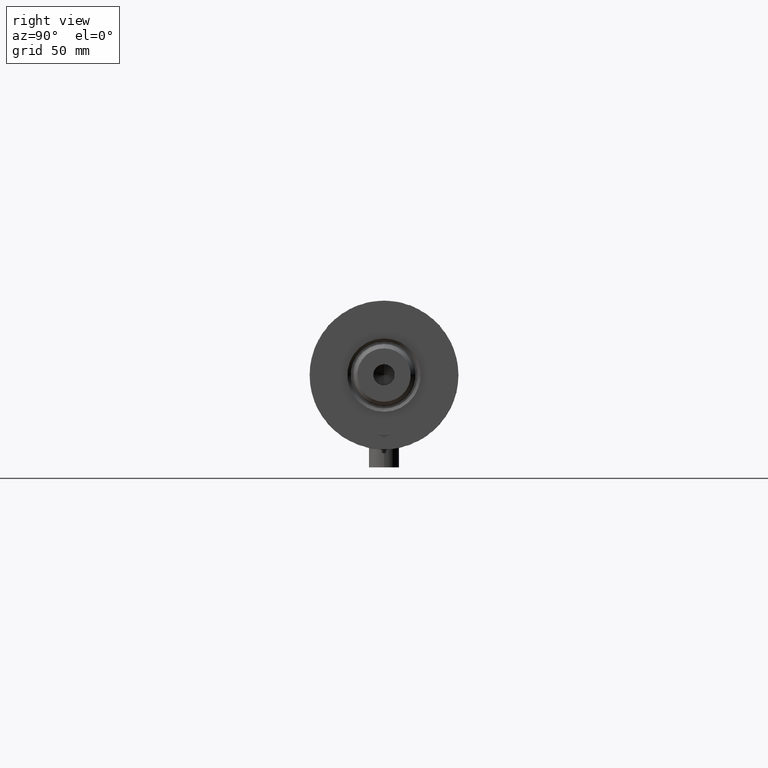
[diagram: clean part render]
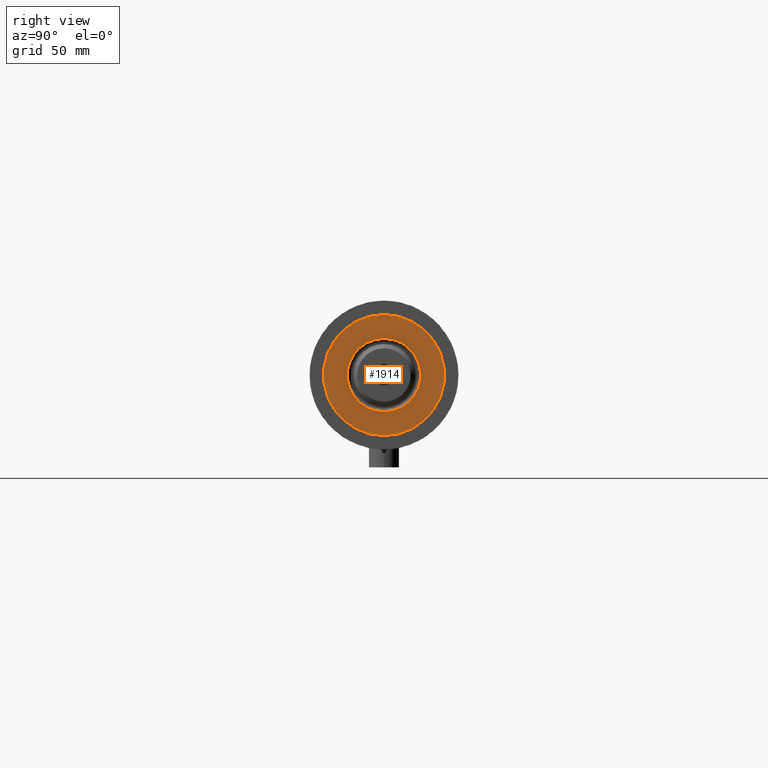
[diagram: same view with one face highlighted and labeled with its STEP entity id]
A machine part, right view. The second image highlights one B-rep face of the part: STEP entity #1914.
In plain terms, the highlighted planar face has unit normal (1, 0, -0).
Its self-contained STEP definition (entity closure, byte-faithful):
#97 = DIRECTION ( 'NONE',  ( 1.000000000000000000, 0.000000000000000000, 0.000000000000000000 ) ) ;
#384 = EDGE_CURVE ( 'NONE', #4756, #454, #4233, .T. ) ;
#419 = ORIENTED_EDGE ( 'NONE', *, *, #4498, .T. ) ;
#451 = CARTESIAN_POINT ( 'NONE',  ( 0.000000000000000000, 0.000000000000000000, 41.00000000000000000 ) ) ;
#454 = VERTEX_POINT ( 'NONE', #3349 ) ;
#620 = VERTEX_POINT ( 'NONE', #2762 ) ;
#854 = ORIENTED_EDGE ( 'NONE', *, *, #1557, .T. ) ;
#887 = CARTESIAN_POINT ( 'NONE',  ( 14.54999999999997939, 0.000000000000000000, 41.00000000000000000 ) ) ;
#1106 = EDGE_LOOP ( 'NONE', ( #854, #419 ) ) ;
#1151 = EDGE_LOOP ( 'NONE', ( #3365, #1831 ) ) ;
#1175 = DIRECTION ( 'NONE',  ( 0.000000000000000000, 0.000000000000000000, 1.000000000000000000 ) ) ;
#1386 = CIRCLE ( 'NONE', #2757, 24.00000000000000355 ) ;
#1390 = CIRCLE ( 'NONE', #2987, 14.54999999999997939 ) ;
#1453 = CARTESIAN_POINT ( 'NONE',  ( 24.00000000000000355, 2.939152317953648289E-15, 41.00000000000000000 ) ) ;
#1557 = EDGE_CURVE ( 'NONE', #620, #3829, #1386, .T. ) ;
#1588 = CARTESIAN_POINT ( 'NONE',  ( 0.000000000000000000, 0.000000000000000000, 41.00000000000000000 ) ) ;
#1650 = EDGE_CURVE ( 'NONE', #454, #4756, #1390, .T. ) ;
#1831 = ORIENTED_EDGE ( 'NONE', *, *, #1650, .T. ) ;
#1840 = CARTESIAN_POINT ( 'NONE',  ( 0.000000000000000000, 0.000000000000000000, 41.00000000000000000 ) ) ;
#1911 = DIRECTION ( 'NONE',  ( 1.000000000000000000, 0.000000000000000000, 0.000000000000000000 ) ) ;
#1914 = ADVANCED_FACE ( 'NONE', ( #3771, #4049 ), #3421, .T. ) ;
#2006 = AXIS2_PLACEMENT_3D ( 'NONE', #451, #2273, #1911 ) ;
#2273 = DIRECTION ( 'NONE',  ( 0.000000000000000000, 0.000000000000000000, 1.000000000000000000 ) ) ;
#2757 = AXIS2_PLACEMENT_3D ( 'NONE', #2982, #3550, #4605 ) ;
#2762 = CARTESIAN_POINT ( 'NONE',  ( -24.00000000000000355, 0.000000000000000000, 41.00000000000000000 ) ) ;
#2861 = CIRCLE ( 'NONE', #2006, 24.00000000000000355 ) ;
#2982 = CARTESIAN_POINT ( 'NONE',  ( 0.000000000000000000, 0.000000000000000000, 41.00000000000000000 ) ) ;
#2987 = AXIS2_PLACEMENT_3D ( 'NONE', #4582, #3880, #4624 ) ;
#3055 = DIRECTION ( 'NONE',  ( -0.000000000000000000, -0.000000000000000000, -1.000000000000000000 ) ) ;
#3349 = CARTESIAN_POINT ( 'NONE',  ( -14.54999999999997939, 1.781861092759396721E-15, 41.00000000000000000 ) ) ;
#3365 = ORIENTED_EDGE ( 'NONE', *, *, #384, .T. ) ;
#3421 = PLANE ( 'NONE',  #3612 ) ;
#3550 = DIRECTION ( 'NONE',  ( 0.000000000000000000, 0.000000000000000000, 1.000000000000000000 ) ) ;
#3612 = AXIS2_PLACEMENT_3D ( 'NONE', #1840, #1175, #4097 ) ;
#3771 = FACE_BOUND ( 'NONE', #1151, .T. ) ;
#3829 = VERTEX_POINT ( 'NONE', #1453 ) ;
#3880 = DIRECTION ( 'NONE',  ( -0.000000000000000000, -0.000000000000000000, -1.000000000000000000 ) ) ;
#4049 = FACE_OUTER_BOUND ( 'NONE', #1106, .T. ) ;
#4097 = DIRECTION ( 'NONE',  ( 1.000000000000000000, 0.000000000000000000, -0.000000000000000000 ) ) ;
#4233 = CIRCLE ( 'NONE', #4773, 14.54999999999997939 ) ;
#4498 = EDGE_CURVE ( 'NONE', #3829, #620, #2861, .T. ) ;
#4582 = CARTESIAN_POINT ( 'NONE',  ( 0.000000000000000000, 0.000000000000000000, 41.00000000000000000 ) ) ;
#4605 = DIRECTION ( 'NONE',  ( 1.000000000000000000, 0.000000000000000000, 0.000000000000000000 ) ) ;
#4624 = DIRECTION ( 'NONE',  ( 1.000000000000000000, 0.000000000000000000, 0.000000000000000000 ) ) ;
#4756 = VERTEX_POINT ( 'NONE', #887 ) ;
#4773 = AXIS2_PLACEMENT_3D ( 'NONE', #1588, #3055, #97 ) ;